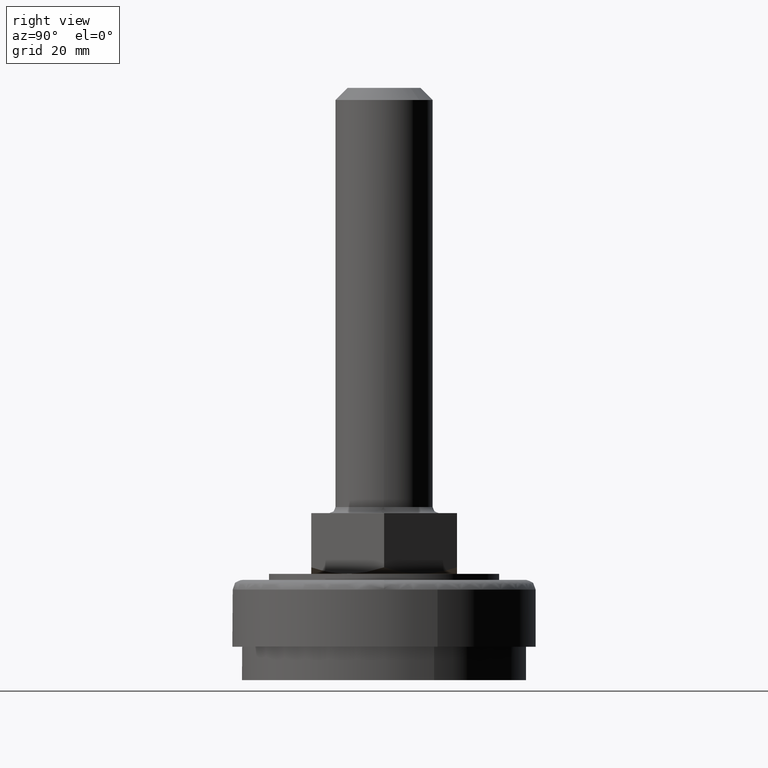
[diagram: clean part render]
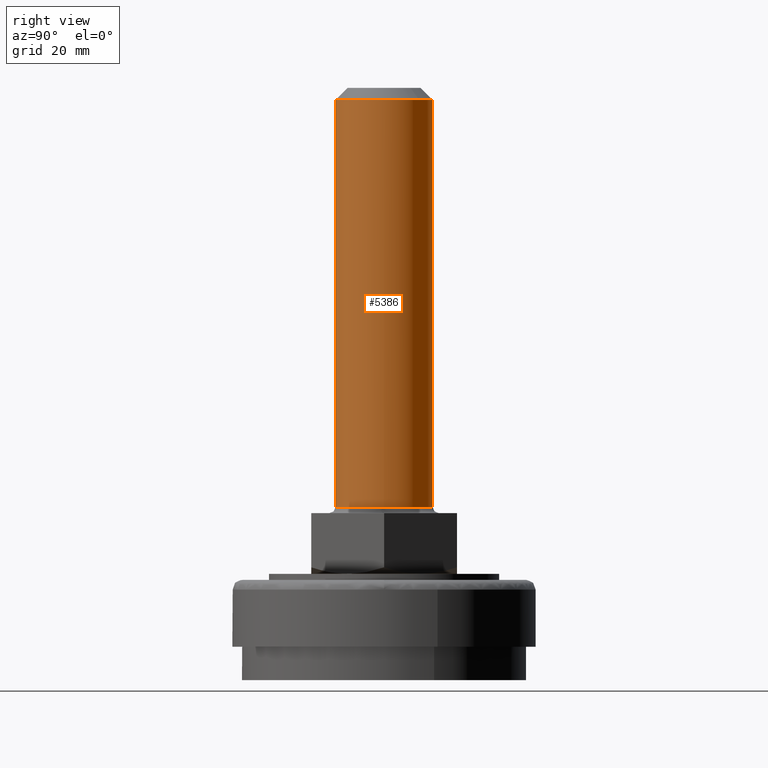
[diagram: same view with one face highlighted and labeled with its STEP entity id]
A machine part, right view. The second image highlights one B-rep face of the part: STEP entity #5386.
In plain terms, the highlighted face is a freeform B-spline surface patch.
Its self-contained STEP definition (entity closure, byte-faithful):
#5123=CARTESIAN_POINT('',(0.069812284311303,7.999695384554780,95.499999999955747));
#5124=VERTEX_POINT('',#5123);
#5130=CARTESIAN_POINT('',(-8.0,0.0,95.500000000000000));
#5131=VERTEX_POINT('',#5130);
#5132=CARTESIAN_POINT('',(-8.0,0.0,95.500000000000000));
#5133=CARTESIAN_POINT('',(-8.0,8.0,95.500000000000000));
#5134=CARTESIAN_POINT('',(0.0,8.0,95.500000000000000));
#5135=CARTESIAN_POINT('',(0.034906806889531,8.0,95.500000000000000));
#5136=CARTESIAN_POINT('',(0.069812284311303,7.999695384554780,95.499999999955747));
#5144=(BOUNDED_CURVE()B_SPLINE_CURVE(2,(#5132,#5133,#5134,#5135,#5136),.UNSPECIFIED.,.F.,.U.)B_SPLINE_CURVE_WITH_KNOTS((3,2,3),(0.500000000000000,0.750000000000000,0.751539894349251),.UNSPECIFIED.)CURVE()GEOMETRIC_REPRESENTATION_ITEM()RATIONAL_B_SPLINE_CURVE((1.0,0.707106781186548,1.0,0.998195901549661,0.996414028067396))REPRESENTATION_ITEM(''));
#5145=EDGE_CURVE('',#5131,#5124,#5144,.T.);
#5147=CARTESIAN_POINT('',(-5.228296384928445,-6.055156225179699,95.500000000000000));
#5148=VERTEX_POINT('',#5147);
#5149=CARTESIAN_POINT('',(-5.228296384928444,-6.055156225179699,95.500000000000014));
#5150=CARTESIAN_POINT('',(-8.0,-3.661941673504641,95.499999999999986));
#5151=CARTESIAN_POINT('',(-8.0,0.0,95.500000000000000));
#5159=(BOUNDED_CURVE()B_SPLINE_CURVE(2,(#5149,#5150,#5151),.UNSPECIFIED.,.F.,.U.)B_SPLINE_CURVE_WITH_KNOTS((3,3),(0.363957593882705,0.500000000000000),.UNSPECIFIED.)CURVE()GEOMETRIC_REPRESENTATION_ITEM()RATIONAL_B_SPLINE_CURVE((0.854696233997828,0.840616407108715,1.0))REPRESENTATION_ITEM(''));
#5160=EDGE_CURVE('',#5148,#5131,#5159,.T.);
#5162=CARTESIAN_POINT('',(-0.209404390635684,-7.997258892961828,95.500000000000000));
#5163=VERTEX_POINT('',#5162);
#5177=CARTESIAN_POINT('',(8.0,0.0,95.500000000000000));
#5178=VERTEX_POINT('',#5177);
#5179=CARTESIAN_POINT('',(8.0,0.0,95.500000000000000));
#5180=CARTESIAN_POINT('',(8.0,-8.0,95.500000000000000));
#5181=CARTESIAN_POINT('',(0.0,-8.0,95.500000000000000));
#5182=CARTESIAN_POINT('',(-0.104720135886738,-8.0,95.500000000000014));
#5183=CARTESIAN_POINT('',(-0.209404390635684,-7.997258892961828,95.500000000000000));
#5191=(BOUNDED_CURVE()B_SPLINE_CURVE(2,(#5179,#5180,#5181,#5182,#5183),.UNSPECIFIED.,.F.,.U.)B_SPLINE_CURVE_WITH_KNOTS((3,2,3),(0.0,0.250000000000000,0.254603061799192),.UNSPECIFIED.)CURVE()GEOMETRIC_REPRESENTATION_ITEM()RATIONAL_B_SPLINE_CURVE((1.0,0.707106781186548,1.0,0.994607177652950,0.989412943262184))REPRESENTATION_ITEM(''));
#5192=EDGE_CURVE('',#5178,#5163,#5191,.T.);
#5194=CARTESIAN_POINT('',(5.517113942279091,5.793224814204140,95.499999999999943));
#5195=VERTEX_POINT('',#5194);
#5196=CARTESIAN_POINT('',(5.517113942279091,5.793224814204140,95.499999999999943));
#5197=CARTESIAN_POINT('',(8.000000000000002,3.428675582040304,95.500000000000000));
#5198=CARTESIAN_POINT('',(8.0,0.0,95.500000000000000));
#5206=(BOUNDED_CURVE()B_SPLINE_CURVE(2,(#5196,#5197,#5198),.UNSPECIFIED.,.F.,.U.)B_SPLINE_CURVE_WITH_KNOTS((3,3),(0.871317023849904,1.0),.UNSPECIFIED.)CURVE()GEOMETRIC_REPRESENTATION_ITEM()RATIONAL_B_SPLINE_CURVE((0.853680523245751,0.849238515635615,1.0))REPRESENTATION_ITEM(''));
#5207=EDGE_CURVE('',#5195,#5178,#5206,.T.);
#5245=CARTESIAN_POINT('',(0.069812284311303,7.999695384554780,95.499999999955747));
#5246=CARTESIAN_POINT('',(3.229168918397629,7.972124096605134,95.500000000000000));
#5247=CARTESIAN_POINT('',(5.517113942279091,5.793224814204140,95.499999999999943));
#5255=(BOUNDED_CURVE()B_SPLINE_CURVE(2,(#5245,#5246,#5247),.UNSPECIFIED.,.F.,.U.)B_SPLINE_CURVE_WITH_KNOTS((3,3),(0.751539894349252,0.871317023849903),.UNSPECIFIED.)CURVE()GEOMETRIC_REPRESENTATION_ITEM()RATIONAL_B_SPLINE_CURVE((0.996414028067393,0.857815109938414,0.853680523245751))REPRESENTATION_ITEM(''));
#5256=EDGE_CURVE('',#5124,#5195,#5255,.T.);
#5262=CARTESIAN_POINT('',(-5.228298970437571,-6.055153992733909,97.175000000040669));
#5263=CARTESIAN_POINT('',(-8.096452792971595,-3.578657821801565,97.175000000040669));
#5264=CARTESIAN_POINT('',(-7.997258599804455,0.209415586462988,97.175000000040669));
#5265=CARTESIAN_POINT('',(-7.787843013341468,8.206674186267444,97.175000000040669));
#5266=CARTESIAN_POINT('',(0.209415586462988,7.997258599804455,97.175000000040669));
#5267=CARTESIAN_POINT('',(8.206674186267444,7.787843013341468,97.175000000040669));
#5268=CARTESIAN_POINT('',(7.997258599804455,-0.209415586462988,97.175000000040669));
#5269=CARTESIAN_POINT('',(7.787843013341468,-8.206674186267444,97.175000000040669));
#5270=CARTESIAN_POINT('',(-0.209415586462988,-7.997258599804455,97.175000000040669));
#5271=CARTESIAN_POINT('',(-5.228298970437571,-6.055153992733909,26.783124998332418));
#5272=CARTESIAN_POINT('',(-8.096452792971595,-3.578657821801565,26.783124998332418));
#5273=CARTESIAN_POINT('',(-7.997258599804455,0.209415586462988,26.783124998332429));
#5274=CARTESIAN_POINT('',(-7.787843013341468,8.206674186267444,26.783124998332429));
#5275=CARTESIAN_POINT('',(0.209415586462988,7.997258599804455,26.783124998332429));
#5276=CARTESIAN_POINT('',(8.206674186267444,7.787843013341468,26.783124998332429));
#5277=CARTESIAN_POINT('',(7.997258599804455,-0.209415586462988,26.783124998332429));
#5278=CARTESIAN_POINT('',(7.787843013341468,-8.206674186267444,26.783124998332429));
#5279=CARTESIAN_POINT('',(-0.209415586462988,-7.997258599804455,26.783124998332429));
#5287=(BOUNDED_SURFACE()B_SPLINE_SURFACE(2,1,((#5262,#5271),(#5263,#5272),(#5264,#5273),(#5265,#5274),(#5266,#5275),(#5267,#5276),(#5268,#5277),(#5269,#5278),(#5270,#5279)),.UNSPECIFIED.,.F.,.F.,.U.)B_SPLINE_SURFACE_WITH_KNOTS((3,2,2,2,3),(2,2),(0.0,7.422707037725862,20.677541033664902,33.932375029603939,47.187209025542977),(0.0,70.391875001708257),.UNSPECIFIED.)GEOMETRIC_REPRESENTATION_ITEM()RATIONAL_B_SPLINE_SURFACE(((0.855662221768731,0.855662221768731),(0.835979797464467,0.835979797464467),(1.0,1.0),(0.707106781186548,0.707106781186548),(1.0,1.0),(0.707106781186548,0.707106781186548),(1.0,1.0),(0.707106781186548,0.707106781186548),(1.0,1.0)))REPRESENTATION_ITEM('')SURFACE());
#5288=CARTESIAN_POINT('',(-8.0,0.0,28.500000000000000));
#5289=VERTEX_POINT('',#5288);
#5290=CARTESIAN_POINT('',(-5.228297372842688,-6.055155372170212,28.500000000000011));
#5291=VERTEX_POINT('',#5290);
#5292=CARTESIAN_POINT('',(-8.0,0.0,28.500000000000000));
#5293=CARTESIAN_POINT('',(-8.0,-3.661940884154239,28.500000000000004));
#5294=CARTESIAN_POINT('',(-5.228297372842688,-6.055155372170212,28.500000000000011));
#5302=(BOUNDED_CURVE()B_SPLINE_CURVE(2,(#5292,#5293,#5294),.UNSPECIFIED.,.F.,.U.)B_SPLINE_CURVE_WITH_KNOTS((3,3),(0.500000000000000,0.636042381466519),.UNSPECIFIED.)CURVE()GEOMETRIC_REPRESENTATION_ITEM()RATIONAL_B_SPLINE_CURVE((1.0,0.840616435988895,0.854696228895326))REPRESENTATION_ITEM(''));
#5303=EDGE_CURVE('',#5289,#5291,#5302,.T.);
#5304=ORIENTED_EDGE('',*,*,#5303,.T.);
#5305=CARTESIAN_POINT('',(-5.228296384928445,-6.055156225179699,95.500000000000000));
#5306=CARTESIAN_POINT('',(-5.228297372842688,-6.055155372170212,28.500000000000011));
#5307=QUASI_UNIFORM_CURVE('',1,(#5305,#5306),.UNSPECIFIED.,.F.,.U.);
#5308=EDGE_CURVE('',#5148,#5291,#5307,.T.);
#5309=ORIENTED_EDGE('',*,*,#5308,.F.);
#5310=ORIENTED_EDGE('',*,*,#5160,.T.);
#5311=ORIENTED_EDGE('',*,*,#5145,.T.);
#5312=ORIENTED_EDGE('',*,*,#5256,.T.);
#5313=ORIENTED_EDGE('',*,*,#5207,.T.);
#5314=ORIENTED_EDGE('',*,*,#5192,.T.);
#5315=CARTESIAN_POINT('',(-0.209415586498194,-7.997258599803535,28.500000000000000));
#5316=VERTEX_POINT('',#5315);
#5317=CARTESIAN_POINT('',(-0.209404390635684,-7.997258892961828,95.500000000000000));
#5318=CARTESIAN_POINT('',(-0.209415586498194,-7.997258599803535,28.500000000000000));
#5319=QUASI_UNIFORM_CURVE('',1,(#5317,#5318),.UNSPECIFIED.,.F.,.U.);
#5320=EDGE_CURVE('',#5163,#5316,#5319,.T.);
#5321=ORIENTED_EDGE('',*,*,#5320,.T.);
#5322=CARTESIAN_POINT('',(7.999368353630505,-0.100528319068580,28.499999998374079));
#5323=VERTEX_POINT('',#5322);
#5324=CARTESIAN_POINT('',(-0.209415586498194,-7.997258599803535,28.500000000000004));
#5325=CARTESIAN_POINT('',(-0.104725736713907,-8.000000000000002,28.500000000000004));
#5326=CARTESIAN_POINT('',(0.0,-8.0,28.500000000000000));
#5327=CARTESIAN_POINT('',(7.900095439255026,-8.0,28.500000000000007));
#5328=CARTESIAN_POINT('',(7.999368353630505,-0.100528319068580,28.499999998374086));
#5336=(BOUNDED_CURVE()B_SPLINE_CURVE(2,(#5324,#5325,#5326,#5327,#5328),.UNSPECIFIED.,.F.,.U.)B_SPLINE_CURVE_WITH_KNOTS((3,2,3),(0.745396693339456,0.750000000000000,0.997784295921651),.UNSPECIFIED.)CURVE()GEOMETRIC_REPRESENTATION_ITEM()RATIONAL_B_SPLINE_CURVE((0.989412390644809,0.994606890780031,1.0,0.709702639984331,0.994854295643834))REPRESENTATION_ITEM(''));
#5337=EDGE_CURVE('',#5316,#5323,#5336,.T.);
#5338=ORIENTED_EDGE('',*,*,#5337,.T.);
#5339=CARTESIAN_POINT('',(8.0,0.0,28.500000000000000));
#5340=VERTEX_POINT('',#5339);
#5341=CARTESIAN_POINT('',(7.999368353630505,-0.100528319068580,28.499999998374083));
#5342=CARTESIAN_POINT('',(8.0,-0.050266143936877,28.499999999999996));
#5343=CARTESIAN_POINT('',(8.0,0.0,28.500000000000000));
#5351=(BOUNDED_CURVE()B_SPLINE_CURVE(2,(#5341,#5342,#5343),.UNSPECIFIED.,.F.,.U.)B_SPLINE_CURVE_WITH_KNOTS((3,3),(0.997784295921651,1.0),.UNSPECIFIED.)CURVE()GEOMETRIC_REPRESENTATION_ITEM()RATIONAL_B_SPLINE_CURVE((0.994854295643834,0.997404141202217,1.0))REPRESENTATION_ITEM(''));
#5352=EDGE_CURVE('',#5323,#5340,#5351,.T.);
#5353=ORIENTED_EDGE('',*,*,#5352,.T.);
#5354=CARTESIAN_POINT('',(0.557866012694641,7.980525390717089,28.499999998402100));
#5355=VERTEX_POINT('',#5354);
#5356=CARTESIAN_POINT('',(8.0,0.0,28.500000000000000));
#5357=CARTESIAN_POINT('',(8.0,7.460294777962216,28.500000000000000));
#5358=CARTESIAN_POINT('',(0.557866012694641,7.980525390717089,28.499999998402107));
#5366=(BOUNDED_CURVE()B_SPLINE_CURVE(2,(#5356,#5357,#5358),.UNSPECIFIED.,.F.,.U.)B_SPLINE_CURVE_WITH_KNOTS((3,3),(0.0,0.237833686531208),.UNSPECIFIED.)CURVE()GEOMETRIC_REPRESENTATION_ITEM()RATIONAL_B_SPLINE_CURVE((1.0,0.721360504038419,0.972879876378762))REPRESENTATION_ITEM(''));
#5367=EDGE_CURVE('',#5340,#5355,#5366,.T.);
#5368=ORIENTED_EDGE('',*,*,#5367,.T.);
#5369=CARTESIAN_POINT('',(0.557866012694641,7.980525390717089,28.499999998402100));
#5370=CARTESIAN_POINT('',(0.279272927089130,8.0,28.499999999999996));
#5371=CARTESIAN_POINT('',(0.0,8.0,28.500000000000000));
#5372=CARTESIAN_POINT('',(-8.0,8.0,28.500000000000007));
#5373=CARTESIAN_POINT('',(-8.0,0.0,28.500000000000000));
#5381=(BOUNDED_CURVE()B_SPLINE_CURVE(2,(#5369,#5370,#5371,#5372,#5373),.UNSPECIFIED.,.F.,.U.)B_SPLINE_CURVE_WITH_KNOTS((3,2,3),(0.237833686531208,0.250000000000000,0.500000000000000),.UNSPECIFIED.)CURVE()GEOMETRIC_REPRESENTATION_ITEM()RATIONAL_B_SPLINE_CURVE((0.972879876378762,0.985746277148128,1.0,0.707106781186548,1.0))REPRESENTATION_ITEM(''));
#5382=EDGE_CURVE('',#5355,#5289,#5381,.T.);
#5383=ORIENTED_EDGE('',*,*,#5382,.T.);
#5384=EDGE_LOOP('',(#5304,#5309,#5310,#5311,#5312,#5313,#5314,#5321,#5338,#5353,#5368,#5383));
#5385=FACE_OUTER_BOUND('',#5384,.T.);
#5386=ADVANCED_FACE('',(#5385),#5287,.T.);